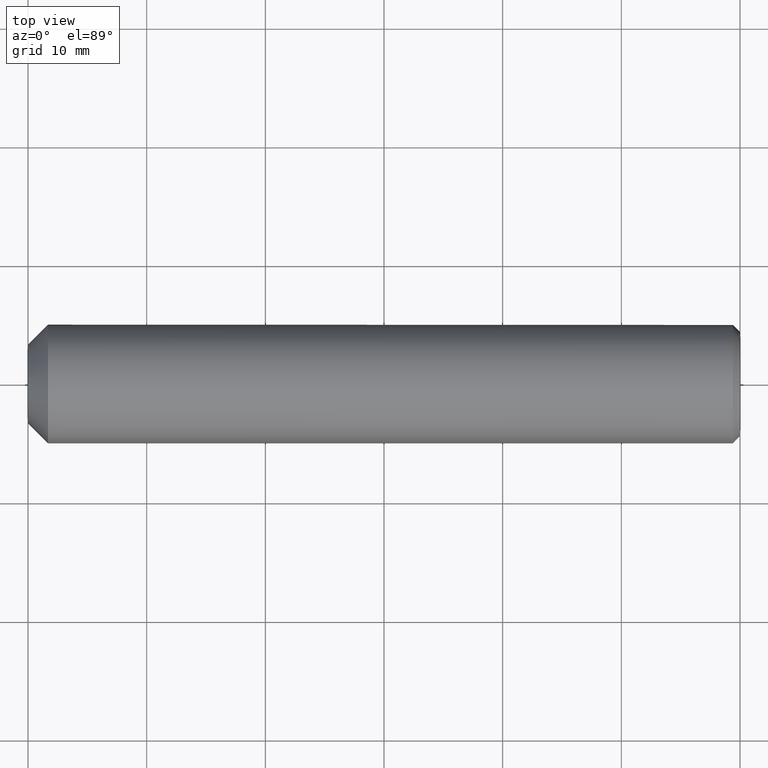
[diagram: clean part render]
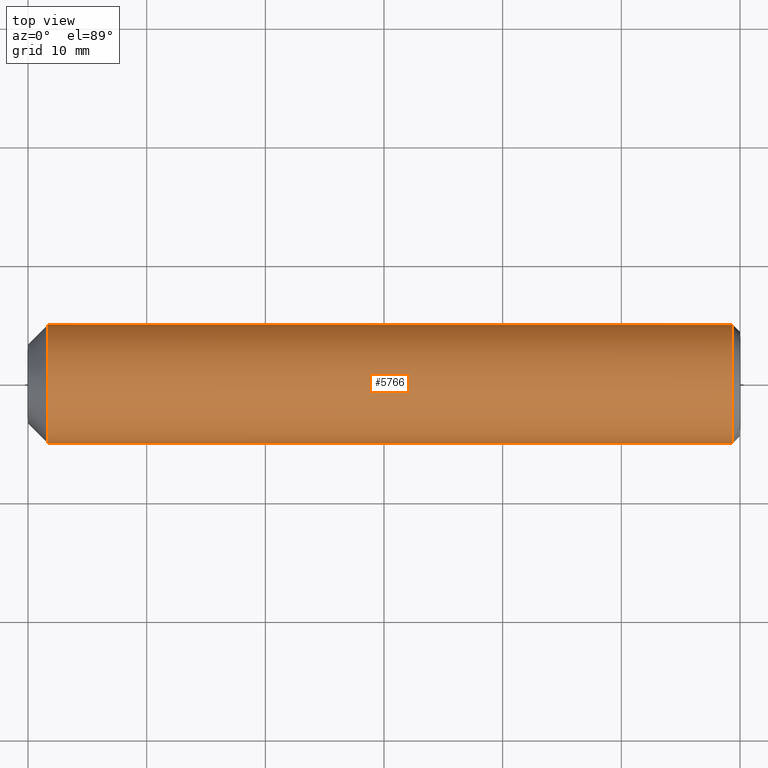
[diagram: same view with one face highlighted and labeled with its STEP entity id]
A machine part, top view. The second image highlights one B-rep face of the part: STEP entity #5766.
In plain terms, the highlighted cylindrical surface (bore or boss wall) has radius 5 mm, axis along (-1, -0, -0).
Its self-contained STEP definition (entity closure, byte-faithful):
#1005 = ORIENTED_EDGE ( 'NONE', *, *, #1252, .T. ) ;
#1201 = CARTESIAN_POINT ( 'NONE',  ( 1.679999999999987500, -4.999999999999999100, 0.0000000000000000000 ) ) ;
#1252 = EDGE_CURVE ( 'NONE', #7059, #7059, #2786, .T. ) ;
#2067 = ORIENTED_EDGE ( 'NONE', *, *, #11871, .F. ) ;
#2622 = DIRECTION ( 'NONE',  ( 0.0000000000000000000, 0.0000000000000000000, 1.000000000000000000 ) ) ;
#2786 = CIRCLE ( 'NONE', #6768, 5.000000000000000000 ) ;
#3196 = AXIS2_PLACEMENT_3D ( 'NONE', #14025, #15459, #9871 ) ;
#5007 = CYLINDRICAL_SURFACE ( 'NONE', #6794, 5.000000000000000000 ) ;
#5766 = ADVANCED_FACE ( 'NONE', ( #14375, #17647 ), #5007, .T. ) ;
#6768 = AXIS2_PLACEMENT_3D ( 'NONE', #15470, #7147, #8543 ) ;
#6794 = AXIS2_PLACEMENT_3D ( 'NONE', #16733, #16614, #2622 ) ;
#7059 = VERTEX_POINT ( 'NONE', #13565 ) ;
#7147 = DIRECTION ( 'NONE',  ( -1.000000000000000000, 0.0000000000000000000, 0.0000000000000000000 ) ) ;
#8543 = DIRECTION ( 'NONE',  ( 0.0000000000000000000, 0.0000000000000000000, -1.000000000000000000 ) ) ;
#9871 = DIRECTION ( 'NONE',  ( -4.336808689942018400E-017, -1.000000000000000000, 0.0000000000000000000 ) ) ;
#11554 = EDGE_LOOP ( 'NONE', ( #2067 ) ) ;
#11871 = EDGE_CURVE ( 'NONE', #14037, #14037, #15595, .T. ) ;
#13565 = CARTESIAN_POINT ( 'NONE',  ( 59.39999999999998400, 0.0000000000000000000, -5.000000000000000000 ) ) ;
#14025 = CARTESIAN_POINT ( 'NONE',  ( 1.679999999999987700, -4.538988261647290200E-017, 0.0000000000000000000 ) ) ;
#14037 = VERTEX_POINT ( 'NONE', #1201 ) ;
#14375 = FACE_OUTER_BOUND ( 'NONE', #17739, .T. ) ;
#15459 = DIRECTION ( 'NONE',  ( -1.000000000000000000, 2.701778727171025800E-017, -0.0000000000000000000 ) ) ;
#15470 = CARTESIAN_POINT ( 'NONE',  ( 59.39999999999998400, 0.0000000000000000000, 0.0000000000000000000 ) ) ;
#15595 = CIRCLE ( 'NONE', #3196, 4.999999999999999100 ) ;
#16614 = DIRECTION ( 'NONE',  ( -1.000000000000000000, -0.0000000000000000000, -0.0000000000000000000 ) ) ;
#16733 = CARTESIAN_POINT ( 'NONE',  ( 60.00000000000000000, 0.0000000000000000000, 0.0000000000000000000 ) ) ;
#17647 = FACE_OUTER_BOUND ( 'NONE', #11554, .T. ) ;
#17739 = EDGE_LOOP ( 'NONE', ( #1005 ) ) ;